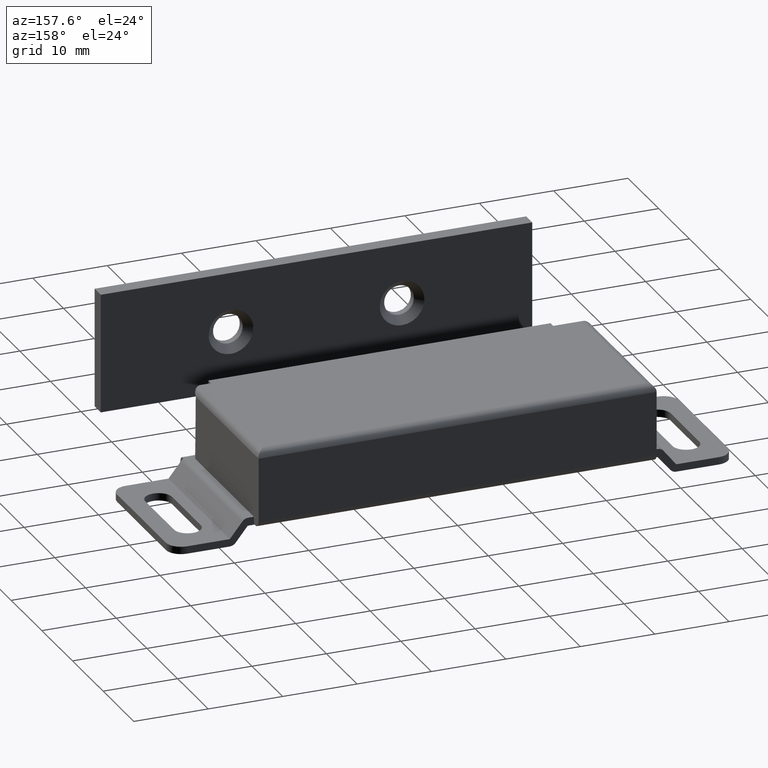
[diagram: clean part render]
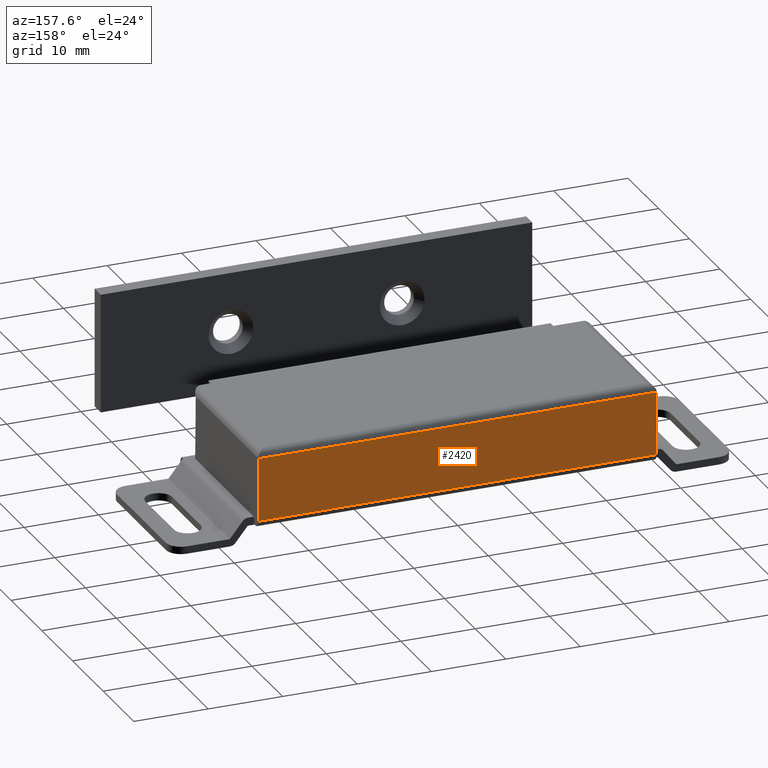
[diagram: same view with one face highlighted and labeled with its STEP entity id]
A machine part, auxiliary view. The second image highlights one B-rep face of the part: STEP entity #2420.
In plain terms, the highlighted face is a freeform B-spline surface patch.
Its self-contained STEP definition (entity closure, byte-faithful):
#1420=CARTESIAN_POINT('',(-26.750004000000001,3.469447E-015,11.999984000000000));
#1421=VERTEX_POINT('',#1420);
#1499=CARTESIAN_POINT('',(26.750004000000001,3.469447E-015,3.500000000000000));
#1500=VERTEX_POINT('',#1499);
#1501=CARTESIAN_POINT('',(26.750004000000001,3.469447E-015,11.999984000000000));
#1502=VERTEX_POINT('',#1501);
#1503=CARTESIAN_POINT('',(26.750004000000001,3.469447E-015,3.500000000000000));
#1504=CARTESIAN_POINT('',(26.750004000000001,3.469447E-015,11.999984000000000));
#1505=QUASI_UNIFORM_CURVE('',1,(#1503,#1504),.UNSPECIFIED.,.F.,.U.);
#1506=EDGE_CURVE('',#1500,#1502,#1505,.T.);
#1775=CARTESIAN_POINT('',(-26.750004000000001,3.469447E-015,3.500000000000000));
#1776=VERTEX_POINT('',#1775);
#1777=CARTESIAN_POINT('',(-26.750004000000001,3.469447E-015,11.999984000000000));
#1778=CARTESIAN_POINT('',(-26.750004000000001,3.469447E-015,3.500000000000000));
#1779=QUASI_UNIFORM_CURVE('',1,(#1777,#1778),.UNSPECIFIED.,.F.,.U.);
#1780=EDGE_CURVE('',#1421,#1776,#1779,.T.);
#2396=CARTESIAN_POINT('',(-26.750004000000001,3.469447E-015,11.999984000000000));
#2397=CARTESIAN_POINT('',(26.750004000000001,3.469447E-015,11.999984000000000));
#2398=QUASI_UNIFORM_CURVE('',1,(#2396,#2397),.UNSPECIFIED.,.F.,.U.);
#2399=EDGE_CURVE('',#1421,#1502,#2398,.T.);
#2405=CARTESIAN_POINT('',(-29.422329295906611,3.469447E-015,3.075425815674616));
#2406=CARTESIAN_POINT('',(29.422330730888650,3.469447E-015,3.075425815674616));
#2407=CARTESIAN_POINT('',(-29.422329295906611,3.469447E-015,12.424558412312720));
#2408=CARTESIAN_POINT('',(29.422330730888650,3.469447E-015,12.424558412312720));
#2409=B_SPLINE_SURFACE_WITH_KNOTS('',1,1,((#2405,#2407),(#2406,#2408)),.UNSPECIFIED.,.F.,.F.,.U.,(2,2),(2,2),(0.0,58.844660026795260),(0.0,9.349132596638103),.UNSPECIFIED.);
#2410=ORIENTED_EDGE('',*,*,#1780,.F.);
#2411=ORIENTED_EDGE('',*,*,#2399,.T.);
#2412=ORIENTED_EDGE('',*,*,#1506,.F.);
#2413=CARTESIAN_POINT('',(26.750004000000001,3.469447E-015,3.500000000000000));
#2414=CARTESIAN_POINT('',(-26.750004000000001,3.469447E-015,3.500000000000000));
#2415=QUASI_UNIFORM_CURVE('',1,(#2413,#2414),.UNSPECIFIED.,.F.,.U.);
#2416=EDGE_CURVE('',#1500,#1776,#2415,.T.);
#2417=ORIENTED_EDGE('',*,*,#2416,.T.);
#2418=EDGE_LOOP('',(#2410,#2411,#2412,#2417));
#2419=FACE_OUTER_BOUND('',#2418,.T.);
#2420=ADVANCED_FACE('',(#2419),#2409,.F.);